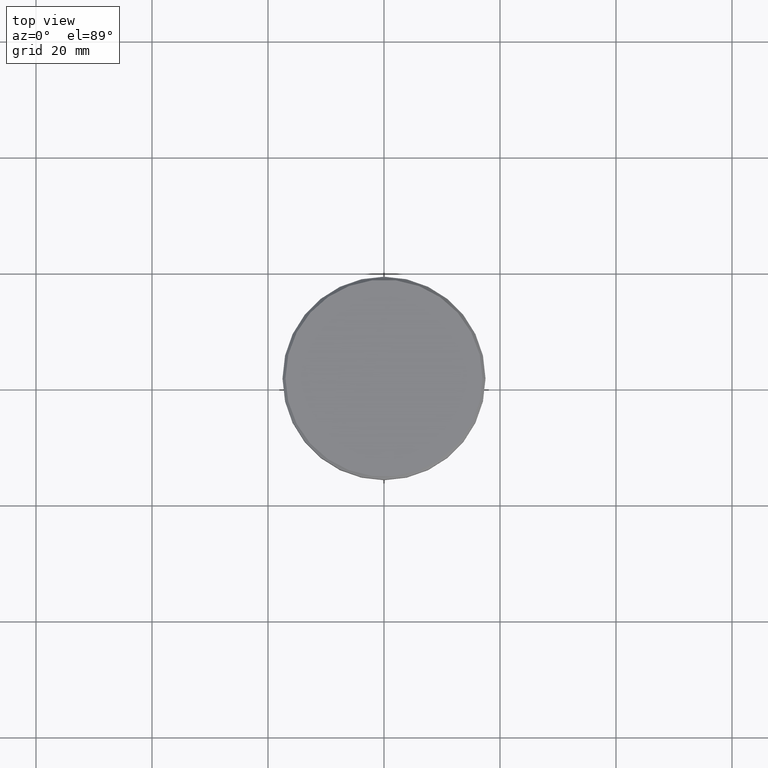
[diagram: clean part render]
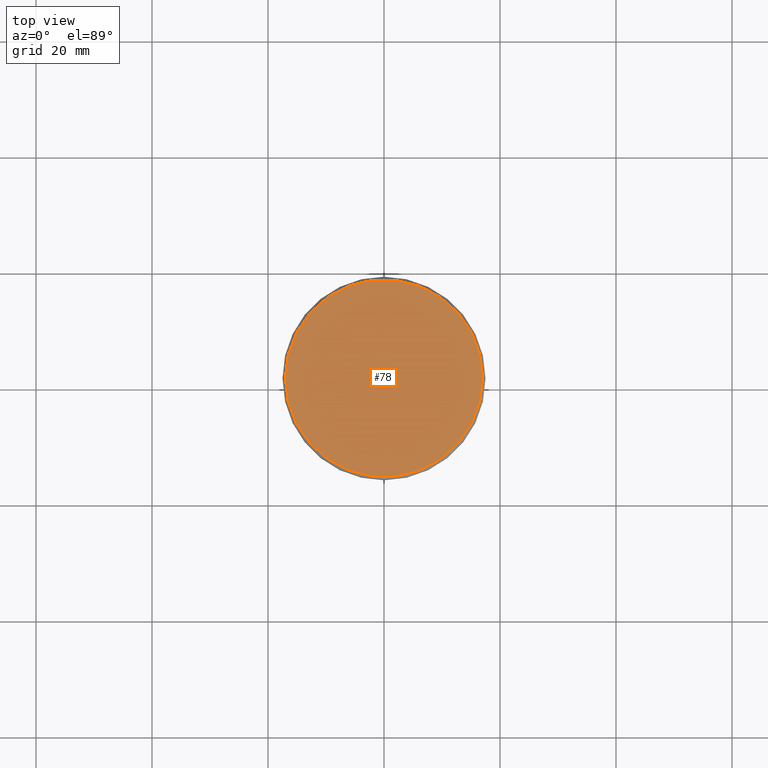
[diagram: same view with one face highlighted and labeled with its STEP entity id]
A machine part, top view. The second image highlights one B-rep face of the part: STEP entity #78.
In plain terms, the highlighted planar face has unit normal (0, -0, 1).
Its self-contained STEP definition (entity closure, byte-faithful):
#29 = DIRECTION ( 'NONE',  ( 0.000000000000000000, -0.000000000000000000, 1.000000000000000000 ) ) ;
#78 = ADVANCED_FACE ( 'NONE', ( #778 ), #227, .T. ) ;
#227 = PLANE ( 'NONE',  #485 ) ;
#306 = DIRECTION ( 'NONE',  ( -0.000000000000000000, -0.000000000000000000, 1.000000000000000000 ) ) ;
#347 = AXIS2_PLACEMENT_3D ( 'NONE', #1169, #1178, #897 ) ;
#367 = CARTESIAN_POINT ( 'NONE',  ( 17.00000000000000000, 2.112515728529184067E-15, 0.000000000000000000 ) ) ;
#402 = CIRCLE ( 'NONE', #347, 17.00000000000000000 ) ;
#409 = VERTEX_POINT ( 'NONE', #367 ) ;
#425 = ORIENTED_EDGE ( 'NONE', *, *, #494, .T. ) ;
#477 = ORIENTED_EDGE ( 'NONE', *, *, #803, .T. ) ;
#483 = CIRCLE ( 'NONE', #658, 17.00000000000000000 ) ;
#485 = AXIS2_PLACEMENT_3D ( 'NONE', #636, #29, #1119 ) ;
#493 = CARTESIAN_POINT ( 'NONE',  ( 0.000000000000000000, 0.000000000000000000, 0.000000000000000000 ) ) ;
#494 = EDGE_CURVE ( 'NONE', #409, #623, #483, .T. ) ;
#623 = VERTEX_POINT ( 'NONE', #956 ) ;
#636 = CARTESIAN_POINT ( 'NONE',  ( 0.000000000000000000, 0.000000000000000000, 0.000000000000000000 ) ) ;
#658 = AXIS2_PLACEMENT_3D ( 'NONE', #493, #306, #942 ) ;
#691 = EDGE_LOOP ( 'NONE', ( #477, #425 ) ) ;
#778 = FACE_OUTER_BOUND ( 'NONE', #691, .T. ) ;
#803 = EDGE_CURVE ( 'NONE', #623, #409, #402, .T. ) ;
#897 = DIRECTION ( 'NONE',  ( 1.000000000000000000, 0.000000000000000000, 0.000000000000000000 ) ) ;
#942 = DIRECTION ( 'NONE',  ( 1.000000000000000000, 0.000000000000000000, 0.000000000000000000 ) ) ;
#956 = CARTESIAN_POINT ( 'NONE',  ( -17.00000000000000000, 0.000000000000000000, 0.000000000000000000 ) ) ;
#1119 = DIRECTION ( 'NONE',  ( 1.000000000000000000, 0.000000000000000000, 0.000000000000000000 ) ) ;
#1169 = CARTESIAN_POINT ( 'NONE',  ( 0.000000000000000000, 0.000000000000000000, 0.000000000000000000 ) ) ;
#1178 = DIRECTION ( 'NONE',  ( -0.000000000000000000, -0.000000000000000000, 1.000000000000000000 ) ) ;